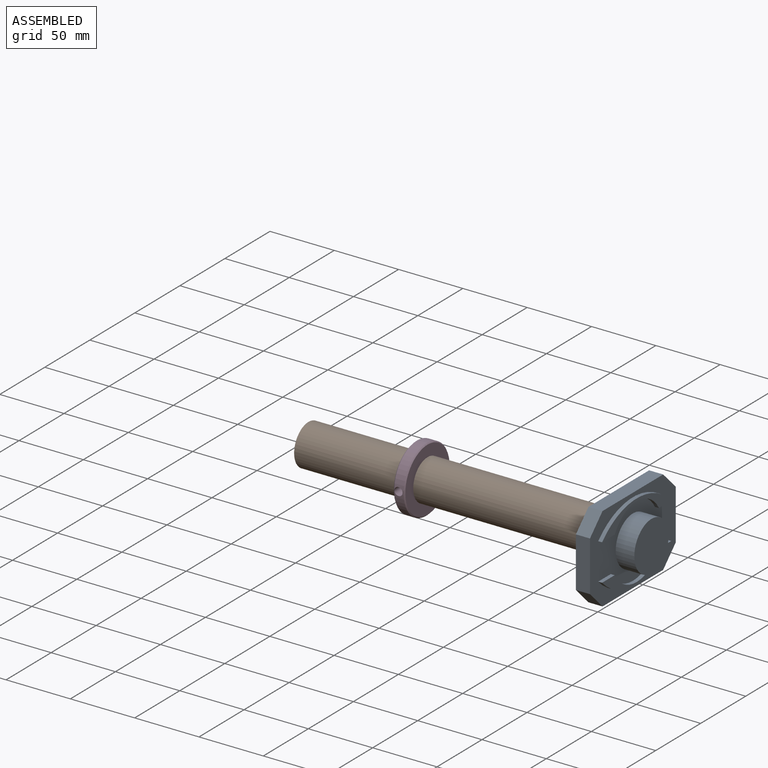
[diagram: assembled view]
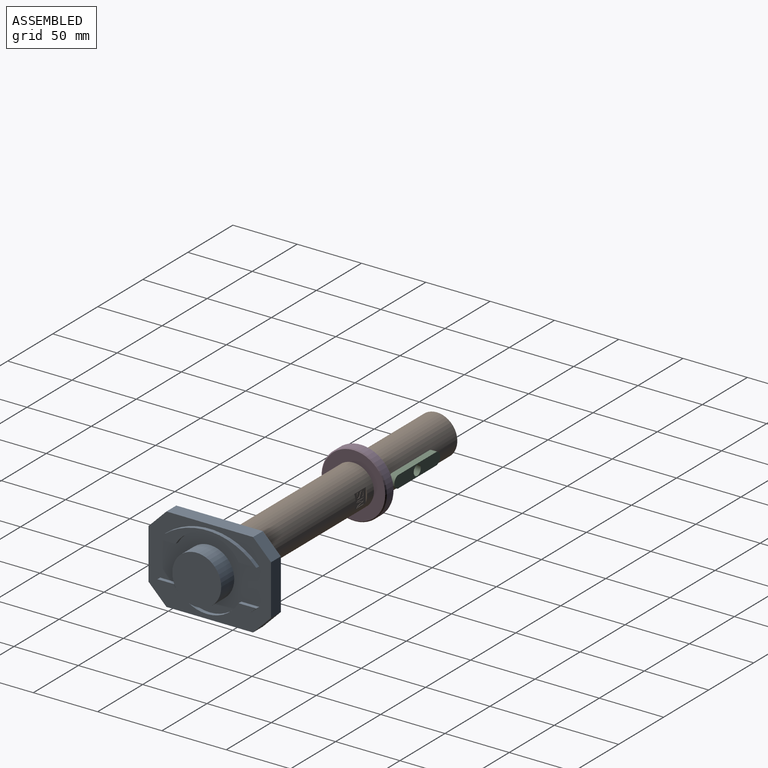
[diagram: assembled view, second angle]
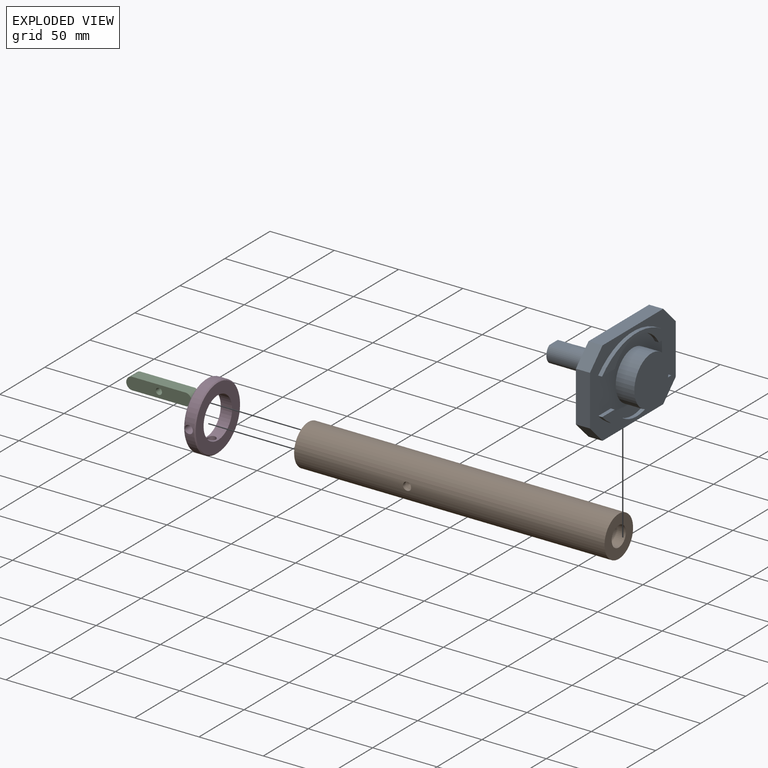
[diagram: exploded view]
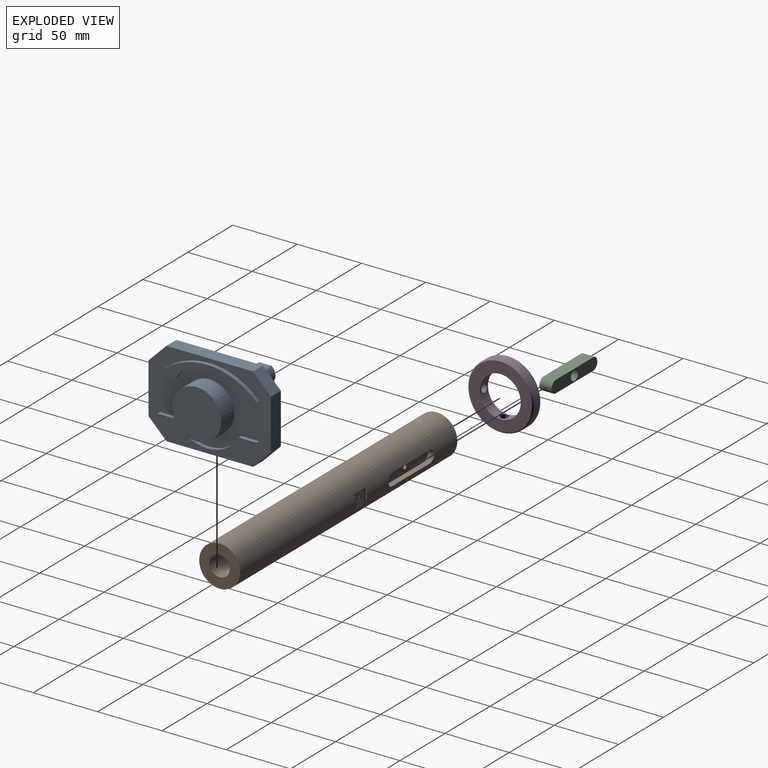
[diagram: exploded view, second angle]
ASSEMBLY  parts=4 mates=3
PART A: 26 faces, bbox 95.3x67.1x76.2 mm
  f0: plane 67.31x10.92mm, normal (0,1,0), area 735.2mm2, adj f4,f5,f22,f25
  f1: plane 39.12x10.92mm, normal (-1,0,0), area 427.2mm2, adj f4,f5,f22,f23
  f2: plane 67.31x10.92mm, normal (0,-1,0), area 735.2mm2, adj f4,f5,f23,f24
  f3: plane 39.12x10.92mm, normal (1,0,0), area 427.2mm2, adj f4,f5,f24,f25
  f4: plane 95.25x67.06mm, normal (0,0,-1), area 5802mm2, adj f0,f1,f2,f3,f19,f22,f23,f24
  f5: plane 95.25x67.06mm, normal (0,0,1), area 4124.2mm2, adj f0,f1,f2,f3,f7,f9,f10,f11
  f6: plane 15.75x14.1mm, normal (0,0,-1), area 183.9mm2, adj f19,f20
  f7: cylinder r=19.05mm len=38.1mm, axis (0,0,-1), area 1732.9mm2, adj f5,f8
  f8: plane 38.1x38.1mm, normal (0,0,1), area 1140.1mm2, adj f7
  f9: cylinder r=28.38mm len=49.13mm, axis (0,0,-1), area 181mm2, adj f5,f10,f12,f13
  f10: plane 13.87x3.05mm, normal (0,-1,0), area 42.3mm2, adj f5,f9,f11,f13
  f11: cylinder r=53.82mm len=76.96mm, axis (0,0,-1), area 261.4mm2, adj f5,f10,f12,f13
  f12: plane 13.97x3.05mm, normal (0,-1,0), area 42.6mm2, adj f5,f9,f11,f13
  f13: plane 76.96x16.19mm, normal (0,0,1), area 366.3mm2, adj f9,f10,f11,f12
  f14: plane 13.97x3.05mm, normal (0,1,0), area 42.6mm2, adj f5,f15,f17,f18
  f15: cylinder r=53.82mm len=76.96mm, axis (0,0,-1), area 261.4mm2, adj f5,f14,f16,f18
  f16: plane 13.87x3.05mm, normal (0,1,0), area 42.3mm2, adj f5,f15,f17,f18
  f17: cylinder r=28.38mm len=49.13mm, axis (0,0,-1), area 181mm2, adj f5,f14,f16,f18
  f18: plane 76.96x16.19mm, normal (0,0,1), area 366.3mm2, adj f14,f15,f16,f17
  f19: cylinder r=7.87mm len=50.8mm, axis (0,0,1), area 2354.9mm2, adj f4,f6,f20,f21
  f20: plane 15.24x9.65mm, normal (0,1,0), area 147.1mm2, adj f6,f19,f21
  f21: plane 9.65x1.65mm, normal (0,0,-1), area 10.9mm2, adj f19,f20
  f22: plane 13.97x13.97mm, normal (-0.71,0.71,0), area 215.8mm2, adj f0,f1,f4,f5
  f23: plane 13.97x13.97mm, normal (-0.71,-0.71,0), area 215.8mm2, adj f1,f2,f4,f5
  f24: plane 13.97x13.97mm, normal (0.71,-0.71,0), area 215.8mm2, adj f2,f3,f4,f5
  f25: plane 13.97x13.97mm, normal (0.71,0.71,0), area 215.8mm2, adj f0,f3,f4,f5
PART B: 61 faces, bbox 241.3x31.8x31.8 mm
  f0: cylinder r=15.88mm len=241.3mm, axis (-1,0,0), area 23390.6mm2, adj f3,f4,f5,f6,f7,f8,f9,f11
  f1: cylinder r=7.87mm len=50.8mm, axis (1,0,0), area 2354.9mm2, adj f2,f4,f53,f54
  f2: plane 15.75x14.1mm, normal (1,0,0), area 183.9mm2, adj f1,f53
  f3: plane 12.7x11.18mm, normal (0,1,0), area 105.7mm2, adj f0,f11,f12,f13,f14,f15,f16,f17
  f4: plane 31.75x31.75mm, normal (1,0,0), area 597mm2, adj f0,f1
  f5: plane 31.75x31.75mm, normal (-1,0,0), area 791.7mm2, adj f0
  f6: plane 42.57x4.36mm, normal (0,0,-1), area 185.5mm2, adj f0,f7,f9,f10
  f7: cylinder r=4.78mm len=9.47mm, axis (0,1,0), area 65mm2, adj f0,f6,f8,f10
  f8: plane 42.57x4.36mm, normal (0,0,1), area 185.5mm2, adj f0,f7,f9,f10
  f9: cylinder r=4.78mm len=9.47mm, axis (0,1,0), area 65mm2, adj f0,f6,f8,f10
  f10: plane 50.8x9.47mm, normal (0,1,0), area 453.1mm2, adj f6,f7,f8,f9,f60
  f11: plane 11.18x1.02mm, normal (-1,0,0), area 7.6mm2, adj f0,f3
  f12: plane 11.18x1.02mm, normal (1,0,0), area 7.6mm2, adj f0,f3
  f13: plane 0.92x0.25mm, normal (0,0,1), area 0.2mm2, adj f3,f14,f32,f33
  f14: extruded ~2.14x0.36mm, area 0.6mm2, adj f3,f13,f15,f33
  f15: extruded ~2.03x0.57mm, area 0.5mm2, adj f3,f14,f16,f33
  f16: extruded ~1.56x0.72mm, area 0.5mm2, adj f3,f15,f17,f33
  f17: extruded ~1.24x0.43mm, area 0.3mm2, adj f3,f16,f18,f33
  f18: extruded ~1.7x0.94mm, area 0.5mm2, adj f3,f17,f19,f33
  f19: extruded ~1.4x0.69mm, area 0.4mm2, adj f3,f18,f20,f33
  f20: extruded ~0.85x0.34mm, area 0.2mm2, adj f3,f19,f21,f33
  f21: extruded ~1.51x1.08mm, area 0.5mm2, adj f3,f20,f22,f33
  f22: extruded ~1.86x0.4mm, area 0.5mm2, adj f3,f21,f23,f33
  f23: plane 0.85x0.33mm, normal (0.36,0,-0.93), area 0.2mm2, adj f3,f22,f24,f33
  f24: extruded ~2.15x0.4mm, area 0.6mm2, adj f3,f23,f25,f33
  f25: extruded ~1.82x0.51mm, area 0.5mm2, adj f3,f24,f26,f33
  f26: extruded ~1.41x0.66mm, area 0.4mm2, adj f3,f25,f27,f33
  f27: extruded ~1.36x0.47mm, area 0.4mm2, adj f3,f26,f28,f33
  f28: extruded ~1.54x0.9mm, area 0.5mm2, adj f3,f27,f29,f33
  f29: extruded ~1.48x0.69mm, area 0.4mm2, adj f3,f28,f30,f33
  f30: extruded ~0.83x0.36mm, area 0.2mm2, adj f3,f29,f31,f33
  f31: extruded ~1.81x1.24mm, area 0.6mm2, adj f3,f30,f32,f33
  f32: extruded ~2.14x0.44mm, area 0.6mm2, adj f3,f13,f31,f33
  f33: plane 7.77x4.89mm, normal (0,1,0), area 14.4mm2, adj f13,f14,f15,f16,f17,f18,f19,f20
  f34: plane 0.8x0.25mm, normal (1,0,0), area 0.2mm2, adj f3,f35,f51,f52
  f35: plane 6.61x1.44mm, normal (0.21,0,-0.98), area 1.7mm2, adj f3,f34,f36,f52
  f36: plane 0.25x0.04mm, normal (1,0,0), area 0mm2, adj f3,f35,f37,f52
  f37: extruded ~2.1x0.25mm, area 0.5mm2, adj f3,f36,f38,f52
  f38: plane 4.52x0.25mm, normal (0,0,1), area 1.1mm2, adj f3,f37,f39,f52
  f39: plane 0.78x0.25mm, normal (1,0,0), area 0.2mm2, adj f3,f38,f40,f52
  f40: plane 7.56x0.25mm, normal (0,0,-1), area 1.9mm2, adj f3,f39,f41,f52
  f41: plane 1.28x0.25mm, normal (-1,0,0), area 0.3mm2, adj f3,f40,f42,f52
  f42: plane 6.16x1.28mm, normal (-0.2,0,0.98), area 1.6mm2, adj f3,f41,f43,f52
  f43: plane 0.25x0.03mm, normal (-1,0,0), area 0mm2, adj f3,f42,f44,f52
  f44: plane 6.16x1.29mm, normal (-0.21,0,-0.98), area 1.6mm2, adj f3,f43,f45,f52
  f45: plane 1.3x0.25mm, normal (-1,0,0), area 0.3mm2, adj f3,f44,f46,f52
  f46: plane 7.56x0.25mm, normal (0,0,1), area 1.9mm2, adj f3,f45,f47,f52
  f47: plane 0.79x0.25mm, normal (1,0,0), area 0.2mm2, adj f3,f46,f48,f52
  f48: plane 4.58x0.25mm, normal (0,0,-1), area 1.2mm2, adj f3,f47,f49,f52
  f49: extruded ~2.02x0.25mm, area 0.5mm2, adj f3,f48,f50,f52
  f50: plane 0.25x0.04mm, normal (1,0,0), area 0mm2, adj f3,f49,f51,f52
  f51: plane 6.6x1.46mm, normal (0.22,0,0.98), area 1.7mm2, adj f3,f34,f50,f52
  f52: plane 7.56x5.18mm, normal (0,1,0), area 21.9mm2, adj f34,f35,f36,f37,f38,f39,f40,f41
  f53: plane 15.24x9.65mm, normal (0,0,-1), area 147.1mm2, adj f1,f2,f54
  f54: plane 9.65x1.65mm, normal (1,0,0), area 10.9mm2, adj f1,f53
  f55: cylinder r=3.17mm len=6.35mm, axis (0,0,-1), area 53.9mm2, adj f0,f56
  f56: cone r=0mm half-angle=59deg, axis (0,0,-1), area 36.9mm2, adj f55
  f57: cylinder r=3.17mm len=6.35mm, axis (0,-1,0), area 53.9mm2, adj f0,f58
  f58: cone r=0mm half-angle=59deg, axis (0,-1,0), area 36.9mm2, adj f57
  f59: cone r=0mm half-angle=59deg, axis (0,1,0), area 10.9mm2, adj f60
  f60: cylinder r=1.73mm len=12.26mm, axis (0,1,0), area 133mm2, adj f10,f59
PART C: 9 faces, bbox 50.8x9.5x9.5 mm
  f0: plane 42.57x9.49mm, normal (0,1,0), area 403.8mm2, adj f1,f3,f4,f5
  f1: cylinder r=4.78mm len=9.49mm, axis (0,0,-1), area 129.9mm2, adj f0,f2,f4,f5
  f2: plane 42.57x9.49mm, normal (0,-1,0), area 403.8mm2, adj f1,f3,f4,f5
  f3: cylinder r=4.78mm len=9.49mm, axis (0,0,-1), area 129.9mm2, adj f0,f2,f4,f5
  f4: plane 50.8x9.47mm, normal (0,0,1), area 444.2mm2, adj f0,f1,f2,f3,f8
  f5: plane 50.8x9.47mm, normal (0,0,-1), area 413.8mm2, adj f0,f1,f2,f3,f6
  f6: cylinder r=3.94mm len=7.87mm, axis (0,0,-1), area 129.7mm2, adj f5,f7
  f7: plane 7.87x7.87mm, normal (0,0,-1), area 30.4mm2, adj f6,f8
  f8: cylinder r=2.41mm len=4.83mm, axis (0,0,-1), area 64.3mm2, adj f4,f7
PART D: 8 faces, bbox 8.9x50.8x50.8 mm
  f0: cylinder r=15.88mm len=31.75mm, axis (-1,0,0), area 822.9mm2, adj f2,f3,f4,f5
  f1: cylinder r=25.4mm len=50.8mm, axis (-1,0,0), area 1112.2mm2, adj f4,f5,f6,f7
  f2: plane 49.28x49.28mm, normal (1,0,0), area 1115.3mm2, adj f0,f7
  f3: plane 49.28x49.28mm, normal (-1,0,0), area 1115.3mm2, adj f0,f6
  f4: cylinder r=3.17mm len=9.85mm, axis (0,-1,0), area 191.2mm2, adj f0,f1
  f5: cylinder r=3.17mm len=9.85mm, axis (0,0,1), area 191.2mm2, adj f0,f1
  f6: cone r=25.4mm half-angle=45deg, axis (1,0,0), area 169.4mm2, adj f1,f3
  f7: cone r=24.64mm half-angle=45deg, axis (-1,0,0), area 169.4mm2, adj f1,f2
PLACE A rot(axis=(0.58,0.58,0.58),120deg) t=(42.25,-65.6,-17.08)mm
PLACE B t=(-199.05,-65.6,-17.08)mm
PLACE C rot(axis=(1,0,0),90deg) t=(-148.25,-45.32,-17.08)mm
PLACE D rot(axis=(1,0,0),90deg) t=(-115.35,-65.6,-17.08)mm
MATE cylindrical D.f0 <-> B.f0  axis (-1,0,0) through (-115.35,-65.6,-17.08)mm
MATE fastened A.f20 <-> B.f53  axis (0,0,1) through (-0.93,-65.6,-10.86)mm
MATE fastened C.f3 <-> B.f9  axis (0,-1,0) through (-127.63,-54.81,-17.08)mm
